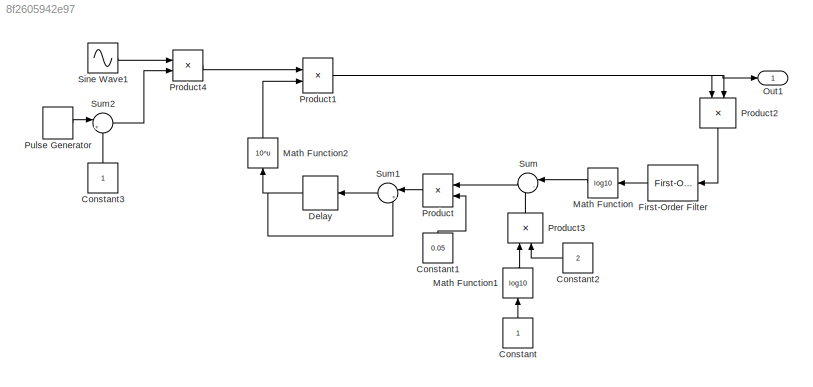
MODEL slx_8f2605942e97
KIND model
CONFIG AbsTol = auto
CONFIG EnableMultiTasking = off
CONFIG FixedStep = auto
CONFIG MaxStep = auto
CONFIG MinStep = auto
CONFIG RelTol = 1e-3
CONFIG SampleTimeConstraint = Unconstrained
CONFIG Solver = VariableStepAuto
CONFIG SolverName = VariableStepAuto
CONFIG StartTime = 0.0
CONFIG StopTime = 10.0
BLOCK [Constant] Constant
  SampleTime = 6.25e-8
BLOCK [Constant] Constant1
  SampleTime = 6.25e-8
  Value = 0.05
BLOCK [Constant] Constant2
  SampleTime = 6.25e-8
  Value = 2
BLOCK [Constant] Constant3
BLOCK [Delay] Delay
  DelayLength = 1
  InputPortMap = u0
  Ports = [1, 1]
BLOCK [Reference] First-Order Filter  REF=powerlib_meascontrol/Filters/First-Order
Filter
  Ports = [1, 1]
  SourceBlock = powerlib_meascontrol/Filters/First-Order\nFilter
  SourceProductBaseCode = PS
  SourceProductName = Simscape Power Systems
  SourceType = First-Order Filter
BLOCK [Math] Math Function
  Operator = log10
  Ports = [1, 1]
BLOCK [Math] Math Function1
  Operator = log10
  Ports = [1, 1]
BLOCK [Math] Math Function2
  Operator = 10^u
  Ports = [1, 1]
BLOCK [Outport] Out1
  IconDisplay = Port number
BLOCK [Product] Product
  InputSameDT = off
  OutDataTypeStr = Inherit: Inherit via internal rule
  Ports = [2, 1]
  RndMeth = Floor
  SaturateOnIntegerOverflow = off
BLOCK [Product] Product1
  InputSameDT = off
  OutDataTypeStr = Inherit: Inherit via internal rule
  Ports = [2, 1]
  RndMeth = Floor
  SaturateOnIntegerOverflow = off
BLOCK [Product] Product2
  InputSameDT = off
  OutDataTypeStr = Inherit: Inherit via internal rule
  Ports = [2, 1]
  RndMeth = Floor
  SaturateOnIntegerOverflow = off
BLOCK [Product] Product3
  InputSameDT = off
  OutDataTypeStr = Inherit: Inherit via internal rule
  Ports = [2, 1]
  RndMeth = Floor
  SaturateOnIntegerOverflow = off
BLOCK [Product] Product4
  InputSameDT = off
  OutDataTypeStr = Inherit: Inherit via internal rule
  Ports = [2, 1]
  RndMeth = Floor
  SaturateOnIntegerOverflow = off
BLOCK [DiscretePulseGenerator] Pulse Generator
  Amplitude = 10
  Period = 0.00003
  Ports = [0, 1]
  PulseType = Time based
  PulseWidth = 50
BLOCK [Sin] Sine Wave1
  Amplitude = 0.1
  Frequency = 15.7e6
  Phase = 1
  Ports = [0, 1]
  SampleTime = 6.25e-8
BLOCK [Sum] Sum
  IconShape = round
  InputSameDT = off
  Inputs = |-+
  OutDataTypeStr = Inherit: Inherit via internal rule
  Ports = [2, 1]
  SaturateOnIntegerOverflow = off
BLOCK [Sum] Sum1
  IconShape = round
  InputSameDT = off
  Inputs = |++
  OutDataTypeStr = Inherit: Inherit via internal rule
  Ports = [2, 1]
  SaturateOnIntegerOverflow = off
BLOCK [Sum] Sum2
  IconShape = round
  InputSameDT = off
  Inputs = |++
  OutDataTypeStr = Inherit: Inherit via internal rule
  Ports = [2, 1]
  SaturateOnIntegerOverflow = off
LINE Constant1:1 -> Product:2
LINE Constant2:1 -> Product3:2
LINE Constant3:1 -> Sum2:2
LINE Constant:1 -> Math Function1:1
NET Delay:1 -> Math Function2:1, Sum1:2
LINE First-Order Filter:1 -> Math Function:1
LINE Math Function1:1 -> Product3:1
LINE Math Function2:1 -> Product1:2
LINE Math Function:1 -> Sum:1
NET Product1:1 -> Out1:1, Product2:1, Product2:2
LINE Product2:1 -> First-Order Filter:1
LINE Product3:1 -> Sum:2
LINE Product4:1 -> Product1:1
LINE Product:1 -> Sum1:1
LINE Pulse Generator:1 -> Sum2:1
LINE Sine Wave1:1 -> Product4:1
LINE Sum1:1 -> Delay:1
LINE Sum2:1 -> Product4:2
LINE Sum:1 -> Product:1
note: NET lines group one-source signal fan-out (src -> all destinations, sorted); 1:1 wires keep LINE
